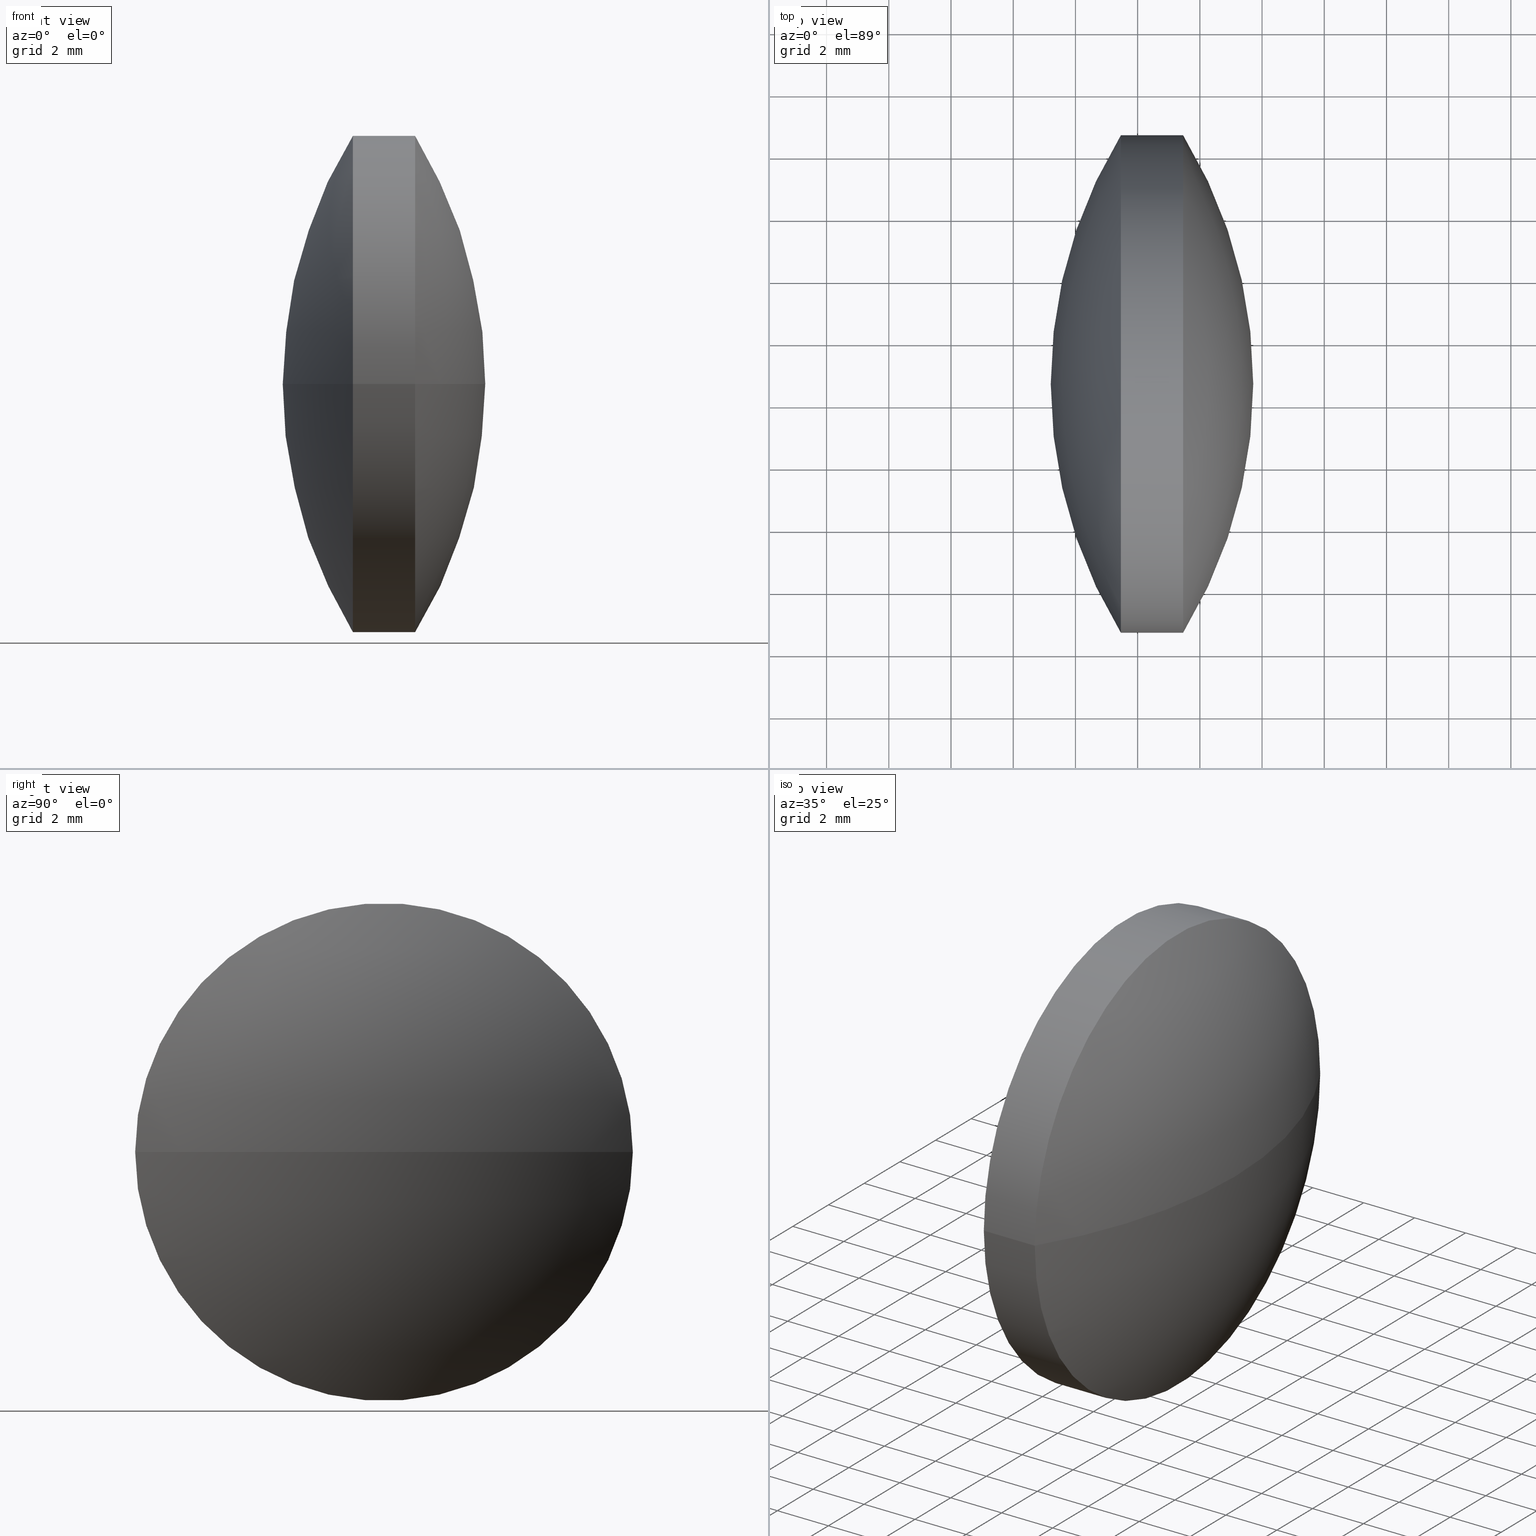
[diagram: canonical four-view strip — front | top / right | iso, engineering-drawing reading convention]
A machine part, canonical four-view strip (front | top / right | iso — engineering-drawing reading convention). The complete STEP part file that produces these views, byte-faithful:
ISO-10303-21;
HEADER;
FILE_DESCRIPTION (( 'STEP AP203' ),
    '1' );
FILE_NAME ('110015.STEP',
    '2019-06-25T05:50:00',
    ( '' ),
    ( '' ),
    'SwSTEP 2.0',
    'SolidWorks 2016',
    '' );
FILE_SCHEMA (( 'CONFIG_CONTROL_DESIGN' ));
ENDSEC;

DATA;
#1 = ORIENTED_EDGE ( 'NONE', *, *, #147, .T. ) ;
#2 = ADVANCED_FACE ( 'NONE', ( #63 ), #196, .T. ) ;
#3 = ORIENTED_EDGE ( 'NONE', *, *, #215, .T. ) ;
#4 = PRODUCT_RELATED_PRODUCT_CATEGORY ( 'detail', '', ( #56 ) ) ;
#5 = APPROVAL_PERSON_ORGANIZATION ( #238, #283, #157 ) ;
#6 = COORDINATED_UNIVERSAL_TIME_OFFSET ( 8, 0, .AHEAD. ) ;
#7 = CARTESIAN_POINT ( 'NONE',  ( 55.46185434624406700, 38.62432316421085700, 9.797174393178758600E-016 ) ) ;
#8 = ORIENTED_EDGE ( 'NONE', *, *, #215, .F. ) ;
#9 = FACE_OUTER_BOUND ( 'NONE', #11, .T. ) ;
#10 = AXIS2_PLACEMENT_3D ( 'NONE', #51, #102, #250 ) ;
#11 = EDGE_LOOP ( 'NONE', ( #3, #207, #22 ) ) ;
#12 = MECHANICAL_CONTEXT ( 'NONE', #180, 'mechanical' ) ;
#13 = APPROVAL_STATUS ( 'not_yet_approved' ) ;
#14 = APPROVAL_DATE_TIME ( #206, #195 ) ;
#15 = APPROVAL_ROLE ( '' ) ;
#16 = VECTOR ( 'NONE', #287, 1000.000000000000000 ) ;
#17 = COORDINATED_UNIVERSAL_TIME_OFFSET ( 8, 0, .AHEAD. ) ;
#18 = DIRECTION ( 'NONE',  ( -3.623864231530019900E-015, 1.000000000000000000, 0.0000000000000000000 ) ) ;
#19 = CALENDAR_DATE ( 2019, 25, 6 ) ;
#20 = CC_DESIGN_PERSON_AND_ORGANIZATION_ASSIGNMENT ( #149, #181, ( #54 ) ) ;
#21 = PRODUCT_DEFINITION_SHAPE ( 'NONE', 'NONE',  #61 ) ;
#22 = ORIENTED_EDGE ( 'NONE', *, *, #282, .F. ) ;
#23 = COORDINATED_UNIVERSAL_TIME_OFFSET ( 8, 0, .AHEAD. ) ;
#24 = PERSON_AND_ORGANIZATION ( #198, #72 ) ;
#25 =( GEOMETRIC_REPRESENTATION_CONTEXT ( 3 ) GLOBAL_UNCERTAINTY_ASSIGNED_CONTEXT ( ( #96 ) ) GLOBAL_UNIT_ASSIGNED_CONTEXT ( ( #301, #261, #114 ) ) REPRESENTATION_CONTEXT ( 'NONE', 'WORKASPACE' ) );
#26 = CALENDAR_DATE ( 2019, 25, 6 ) ;
#27 = VERTEX_POINT ( 'NONE', #39 ) ;
#28 = CALENDAR_DATE ( 2019, 25, 6 ) ;
#29 = DIRECTION ( 'NONE',  ( -1.000000000000000000, -3.453227301823334800E-015, -0.0000000000000000000 ) ) ;
#30 = APPLICATION_CONTEXT ( 'configuration controlled 3d designs of mechanical parts and assemblies' ) ;
#31 = APPROVAL_STATUS ( 'not_yet_approved' ) ;
#32 = APPROVAL_DATE_TIME ( #40, #259 ) ;
#33 = APPROVAL_ROLE ( '' ) ;
#34 = CC_DESIGN_SECURITY_CLASSIFICATION ( #54, ( #171 ) ) ;
#35 = PERSON_AND_ORGANIZATION_ROLE ( 'creator' ) ;
#36 = CALENDAR_DATE ( 2019, 25, 6 ) ;
#37 = DIRECTION ( 'NONE',  ( 0.0000000000000000000, 0.0000000000000000000, -1.000000000000000000 ) ) ;
#38 = CARTESIAN_POINT ( 'NONE',  ( 0.0000000000000000000, 0.0000000000000000000, 0.0000000000000000000 ) ) ;
#39 = CARTESIAN_POINT ( 'NONE',  ( 55.46185434624412400, 22.62432316421092800, 0.0000000000000000000 ) ) ;
#40 = DATE_AND_TIME ( #94, #166 ) ;
#41 = DATE_AND_TIME ( #28, #46 ) ;
#42 = VECTOR ( 'NONE', #244, 1000.000000000000000 ) ;
#43 = CIRCLE ( 'NONE', #161, 7.999999999999972500 ) ;
#44 = CC_DESIGN_PERSON_AND_ORGANIZATION_ASSIGNMENT ( #24, #251, ( #61 ) ) ;
#45 = DIRECTION ( 'NONE',  ( 3.469446951953622900E-015, -1.000000000000000000, 0.0000000000000000000 ) ) ;
#46 = LOCAL_TIME ( 13, 50, 0.0000000000000000000, #243 ) ;
#47 = CARTESIAN_POINT ( 'NONE',  ( 53.46185434624409500, 30.62432316421086800, 0.0000000000000000000 ) ) ;
#48 = CYLINDRICAL_SURFACE ( 'NONE', #10, 7.999999999999976000 ) ;
#49 = CC_DESIGN_PERSON_AND_ORGANIZATION_ASSIGNMENT ( #303, #86, ( #172 ) ) ;
#50 = DIRECTION ( 'NONE',  ( -4.228983761906197800E-031, 1.224646799147353200E-016, -1.000000000000000000 ) ) ;
#51 = CARTESIAN_POINT ( 'NONE',  ( 49.57645588697565100, 30.62432316421085700, 0.0000000000000000000 ) ) ;
#52 = CIRCLE ( 'NONE', #91, 7.999999999999979600 ) ;
#53 = DIRECTION ( 'NONE',  ( -0.0000000000000000000, 0.0000000000000000000, 1.000000000000000000 ) ) ;
#54 = SECURITY_CLASSIFICATION ( '', '', #132 ) ;
#55 = APPROVAL_STATUS ( 'not_yet_approved' ) ;
#56 = PRODUCT ( '110015', '110015', '', ( #12 ) ) ;
#57 = DATE_AND_TIME ( #150, #120 ) ;
#58 = PERSON_AND_ORGANIZATION ( #198, #72 ) ;
#59 = AXIS2_PLACEMENT_3D ( 'NONE', #304, #29, #129 ) ;
#60 = ORIENTED_EDGE ( 'NONE', *, *, #147, .F. ) ;
#61 = PRODUCT_DEFINITION ( 'δ֪', '', #171, #286 ) ;
#62 = SPHERICAL_SURFACE ( 'NONE', #223, 15.31822046429724300 ) ;
#63 = FACE_OUTER_BOUND ( 'NONE', #67, .T. ) ;
#64 = MECHANICAL_CONTEXT ( 'NONE', #65, 'mechanical' ) ;
#65 = APPLICATION_CONTEXT ( 'configuration controlled 3d designs of mechanical parts and assemblies' ) ;
#66 = PERSON_AND_ORGANIZATION ( #198, #72 ) ;
#67 = EDGE_LOOP ( 'NONE', ( #90, #68, #145 ) ) ;
#68 = ORIENTED_EDGE ( 'NONE', *, *, #88, .T. ) ;
#69 = CC_DESIGN_APPROVAL ( #195, ( #92 ) ) ;
#70 = COORDINATED_UNIVERSAL_TIME_OFFSET ( 8, 0, .AHEAD. ) ;
#71 = AXIS2_PLACEMENT_3D ( 'NONE', #165, #211, #18 ) ;
#72 = ORGANIZATION ( 'δָ��', 'δָ��', '' ) ;
#73 = DIRECTION ( 'NONE',  ( -1.000000000000000000, -3.453227301823334800E-015, -0.0000000000000000000 ) ) ;
#74 = SECURITY_CLASSIFICATION ( '', '', #233 ) ;
#75 = LOCAL_TIME ( 13, 50, 0.0000000000000000000, #299 ) ;
#76 = DIRECTION ( 'NONE',  ( 0.0000000000000000000, 1.000000000000000000, 1.224646799147353200E-016 ) ) ;
#77 = CARTESIAN_POINT ( 'NONE',  ( 53.46185434624406700, 38.62432316421085700, 0.0000000000000000000 ) ) ;
#78 = DIRECTION ( 'NONE',  ( 1.000000000000000000, 0.0000000000000000000, 0.0000000000000000000 ) ) ;
#79 = APPLICATION_PROTOCOL_DEFINITION ( 'international standard', 'config_control_design', 1994, #180 ) ;
#80 = PERSON_AND_ORGANIZATION_ROLE ( 'design_supplier' ) ;
#81 = LOCAL_TIME ( 13, 50, 0.0000000000000000000, #144 ) ;
#82 = PERSON_AND_ORGANIZATION_ROLE ( 'classification_officer' ) ;
#83 = APPROVAL ( #155, 'δָ��' ) ;
#84 = ORIENTED_EDGE ( 'NONE', *, *, #123, .F. ) ;
#85 = CALENDAR_DATE ( 2019, 25, 6 ) ;
#86 = PERSON_AND_ORGANIZATION_ROLE ( 'design_owner' ) ;
#87 = DIRECTION ( 'NONE',  ( 3.623864231530011200E-015, -1.000000000000000000, 0.0000000000000000000 ) ) ;
#88 = EDGE_CURVE ( 'NONE', #128, #214, #52, .T. ) ;
#89 = LOCAL_TIME ( 13, 50, 0.0000000000000000000, #219 ) ;
#90 = ORIENTED_EDGE ( 'NONE', *, *, #115, .F. ) ;
#91 = AXIS2_PLACEMENT_3D ( 'NONE', #173, #73, #122 ) ;
#92 = PRODUCT_DEFINITION ( 'δ֪', '', #117, #253 ) ;
#93 = DATE_AND_TIME ( #85, #224 ) ;
#94 = CALENDAR_DATE ( 2019, 25, 6 ) ;
#95 = VERTEX_POINT ( 'NONE', #7 ) ;
#96 = UNCERTAINTY_MEASURE_WITH_UNIT (LENGTH_MEASURE( 1.000000000000000100E-005 ), #301, 'distance_accuracy_value', 'NONE');
#97 = PERSON_AND_ORGANIZATION ( #198, #72 ) ;
#98 = FACE_OUTER_BOUND ( 'NONE', #186, .T. ) ;
#99 = AXIS2_PLACEMENT_3D ( 'NONE', #142, #235, #164 ) ;
#100 = CARTESIAN_POINT ( 'NONE',  ( 51.20686006052977000, 30.62432316421083600, 0.0000000000000000000 ) ) ;
#101 = CARTESIAN_POINT ( 'NONE',  ( 49.57645588697565100, 30.62432316421085700, 0.0000000000000000000 ) ) ;
#102 = DIRECTION ( 'NONE',  ( -1.000000000000000000, -3.453227301823334800E-015, -0.0000000000000000000 ) ) ;
#103 = DIRECTION ( 'NONE',  ( 4.228983761906197800E-031, -1.224646799147353200E-016, 1.000000000000000000 ) ) ;
#104 = APPLICATION_PROTOCOL_DEFINITION ( 'international standard', 'config_control_design', 1994, #30 ) ;
#105 = PERSON_AND_ORGANIZATION ( #198, #72 ) ;
#106 = CC_DESIGN_APPROVAL ( #252, ( #54 ) ) ;
#107 = CLOSED_SHELL ( 'NONE', ( #281, #264, #305, #2, #191, #216 ) ) ;
#108 = DATE_TIME_ROLE ( 'creation_date' ) ;
#109 = EDGE_CURVE ( 'NONE', #285, #27, #242, .T. ) ;
#110 = APPROVAL_PERSON_ORGANIZATION ( #58, #252, #15 ) ;
#111 = CC_DESIGN_DATE_AND_TIME_ASSIGNMENT ( #231, #130, ( #92 ) ) ;
#112 = DIRECTION ( 'NONE',  ( -0.0000000000000000000, 0.0000000000000000000, 1.000000000000000000 ) ) ;
#113 = PERSON_AND_ORGANIZATION ( #198, #72 ) ;
#114 =( NAMED_UNIT ( * ) SI_UNIT ( $, .STERADIAN. ) SOLID_ANGLE_UNIT ( ) );
#115 = EDGE_CURVE ( 'NONE', #128, #151, #260, .T. ) ;
#116 = PERSON_AND_ORGANIZATION ( #198, #72 ) ;
#117 = PRODUCT_DEFINITION_FORMATION_WITH_SPECIFIED_SOURCE ( '�κ�', '', #172, .NOT_KNOWN. ) ;
#118 = ORIENTED_EDGE ( 'NONE', *, *, #182, .F. ) ;
#119 = CARTESIAN_POINT ( 'NONE',  ( 49.57645588697562300, 38.62432316421082800, 9.797174393178796100E-016 ) ) ;
#120 = LOCAL_TIME ( 13, 50, 0.0000000000000000000, #189 ) ;
#121 = SHAPE_DEFINITION_REPRESENTATION ( #21, #221 ) ;
#122 = DIRECTION ( 'NONE',  ( 3.469446951953622900E-015, -1.000000000000000000, 0.0000000000000000000 ) ) ;
#123 = EDGE_CURVE ( 'NONE', #27, #95, #43, .T. ) ;
#124 = ORIENTED_EDGE ( 'NONE', *, *, #200, .T. ) ;
#125 = CARTESIAN_POINT ( 'NONE',  ( 49.57645588697568000, 22.62432316421087800, 0.0000000000000000000 ) ) ;
#126 = CC_DESIGN_PERSON_AND_ORGANIZATION_ASSIGNMENT ( #197, #131, ( #117 ) ) ;
#127 = SPHERICAL_SURFACE ( 'NONE', #302, 15.31822046429724300 ) ;
#128 = VERTEX_POINT ( 'NONE', #138 ) ;
#129 = DIRECTION ( 'NONE',  ( 3.469446951953626000E-015, -1.000000000000000000, 0.0000000000000000000 ) ) ;
#130 = DATE_TIME_ROLE ( 'creation_date' ) ;
#131 = PERSON_AND_ORGANIZATION_ROLE ( 'creator' ) ;
#132 = SECURITY_CLASSIFICATION_LEVEL ( 'unclassified' ) ;
#133 = APPROVAL_PERSON_ORGANIZATION ( #113, #195, #228 ) ;
#134 = CC_DESIGN_APPROVAL ( #83, ( #171 ) ) ;
#135 = ORIENTED_EDGE ( 'NONE', *, *, #200, .F. ) ;
#136 = CIRCLE ( 'NONE', #59, 7.999999999999972500 ) ;
#137 = CARTESIAN_POINT ( 'NONE',  ( 42.39862816766111600, 30.62432316421085700, 0.0000000000000000000 ) ) ;
#138 = CARTESIAN_POINT ( 'NONE',  ( 53.46185434624411700, 22.62432316421085000, -9.797174393178811900E-016 ) ) ;
#139 = ORIENTED_EDGE ( 'NONE', *, *, #109, .T. ) ;
#140 = DIRECTION ( 'NONE',  ( -1.000000000000000000, 0.0000000000000000000, 0.0000000000000000000 ) ) ;
#141 = AXIS2_PLACEMENT_3D ( 'NONE', #38, #278, #212 ) ;
#142 = CARTESIAN_POINT ( 'NONE',  ( 0.0000000000000000000, 0.0000000000000000000, 0.0000000000000000000 ) ) ;
#143 = APPLICATION_PROTOCOL_DEFINITION ( 'international standard', 'config_control_design', 1994, #65 ) ;
#144 = COORDINATED_UNIVERSAL_TIME_OFFSET ( 8, 0, .AHEAD. ) ;
#145 = ORIENTED_EDGE ( 'NONE', *, *, #282, .T. ) ;
#146 = FACE_OUTER_BOUND ( 'NONE', #232, .T. ) ;
#147 = EDGE_CURVE ( 'NONE', #27, #128, #158, .T. ) ;
#148 = PRODUCT_RELATED_PRODUCT_CATEGORY ( 'detail', '', ( #172 ) ) ;
#149 = PERSON_AND_ORGANIZATION ( #198, #72 ) ;
#150 = CALENDAR_DATE ( 2019, 25, 6 ) ;
#151 = VERTEX_POINT ( 'NONE', #100 ) ;
#152 = DATE_AND_TIME ( #163, #217 ) ;
#153 = DIRECTION ( 'NONE',  ( -1.000000000000000000, -3.453227301823334800E-015, -0.0000000000000000000 ) ) ;
#154 = CC_DESIGN_PERSON_AND_ORGANIZATION_ASSIGNMENT ( #262, #230, ( #117 ) ) ;
#155 = APPROVAL_STATUS ( 'not_yet_approved' ) ;
#156 = COORDINATED_UNIVERSAL_TIME_OFFSET ( 8, 0, .AHEAD. ) ;
#157 = APPROVAL_ROLE ( '' ) ;
#158 = LINE ( 'NONE', #125, #42 ) ;
#159 = MANIFOLD_SOLID_BREP ( '��ת1', #107 ) ;
#160 = DATE_TIME_ROLE ( 'classification_date' ) ;
#161 = AXIS2_PLACEMENT_3D ( 'NONE', #290, #153, #202 ) ;
#162 = AXIS2_PLACEMENT_3D ( 'NONE', #101, #292, #247 ) ;
#163 = CALENDAR_DATE ( 2019, 25, 6 ) ;
#164 = DIRECTION ( 'NONE',  ( 1.000000000000000000, 0.0000000000000000000, 0.0000000000000000000 ) ) ;
#165 = CARTESIAN_POINT ( 'NONE',  ( 66.52508052482697600, 30.62432316421088500, 0.0000000000000000000 ) ) ;
#166 = LOCAL_TIME ( 13, 50, 0.0000000000000000000, #70 ) ;
#167 = ORIENTED_EDGE ( 'NONE', *, *, #193, .T. ) ;
#168 = APPROVAL_PERSON_ORGANIZATION ( #116, #83, #274 ) ;
#169 = AXIS2_PLACEMENT_3D ( 'NONE', #227, #53, #78 ) ;
#170 = PERSON_AND_ORGANIZATION ( #198, #72 ) ;
#171 = PRODUCT_DEFINITION_FORMATION_WITH_SPECIFIED_SOURCE ( '�κ�', '', #56, .NOT_KNOWN. ) ;
#172 = PRODUCT ( '110015', '110015', '', ( #64 ) ) ;
#173 = CARTESIAN_POINT ( 'NONE',  ( 53.46185434624409500, 30.62432316421086800, 0.0000000000000000000 ) ) ;
#174 = APPROVAL_DATE_TIME ( #240, #83 ) ;
#175 = AXIS2_PLACEMENT_3D ( 'NONE', #246, #103, #291 ) ;
#176 = CC_DESIGN_PERSON_AND_ORGANIZATION_ASSIGNMENT ( #279, #35, ( #92 ) ) ;
#177 = LINE ( 'NONE', #119, #16 ) ;
#178 = APPROVAL_STATUS ( 'not_yet_approved' ) ;
#179 = CARTESIAN_POINT ( 'NONE',  ( 57.71684863195836400, 30.62432316421091000, 0.0000000000000000000 ) ) ;
#180 = APPLICATION_CONTEXT ( 'configuration controlled 3d designs of mechanical parts and assemblies' ) ;
#181 = PERSON_AND_ORGANIZATION_ROLE ( 'classification_officer' ) ;
#182 = EDGE_CURVE ( 'NONE', #285, #95, #245, .T. ) ;
#183 = APPROVAL_DATE_TIME ( #152, #209 ) ;
#184 = ORIENTED_EDGE ( 'NONE', *, *, #123, .T. ) ;
#185 = FACE_OUTER_BOUND ( 'NONE', #199, .T. ) ;
#186 = EDGE_LOOP ( 'NONE', ( #184, #167, #266, #60 ) ) ;
#187 = CC_DESIGN_APPROVAL ( #283, ( #74 ) ) ;
#188 = CC_DESIGN_PERSON_AND_ORGANIZATION_ASSIGNMENT ( #97, #272, ( #171 ) ) ;
#189 = COORDINATED_UNIVERSAL_TIME_OFFSET ( 8, 0, .AHEAD. ) ;
#190 = CALENDAR_DATE ( 2019, 25, 6 ) ;
#191 = ADVANCED_FACE ( 'NONE', ( #300 ), #62, .T. ) ;
#192 = ORIENTED_EDGE ( 'NONE', *, *, #109, .F. ) ;
#193 = EDGE_CURVE ( 'NONE', #95, #214, #177, .T. ) ;
#194 = SPHERICAL_SURFACE ( 'NONE', #237, 15.31822046429720900 ) ;
#195 = APPROVAL ( #178, 'δָ��' ) ;
#196 = SPHERICAL_SURFACE ( 'NONE', #71, 15.31822046429720900 ) ;
#197 = PERSON_AND_ORGANIZATION ( #198, #72 ) ;
#198 = PERSON ( 'δָ��', 'δָ��', 'δָ��', ('δָ��'), ('δָ��'), ('δָ��') ) ;
#199 = EDGE_LOOP ( 'NONE', ( #249, #124, #1, #8 ) ) ;
#200 = EDGE_CURVE ( 'NONE', #95, #27, #136, .T. ) ;
#201 = CYLINDRICAL_SURFACE ( 'NONE', #162, 7.999999999999976000 ) ;
#202 = DIRECTION ( 'NONE',  ( 3.469446951953626000E-015, -1.000000000000000000, 0.0000000000000000000 ) ) ;
#203 = CC_DESIGN_SECURITY_CLASSIFICATION ( #74, ( #117 ) ) ;
#204 = DIRECTION ( 'NONE',  ( -0.0000000000000000000, 0.0000000000000000000, -1.000000000000000000 ) ) ;
#205 = PERSON_AND_ORGANIZATION_ROLE ( 'design_owner' ) ;
#206 = DATE_AND_TIME ( #273, #213 ) ;
#207 = ORIENTED_EDGE ( 'NONE', *, *, #115, .T. ) ;
#208 = AXIS2_PLACEMENT_3D ( 'NONE', #234, #50, #76 ) ;
#209 = APPROVAL ( #55, 'δָ��' ) ;
#210 = LOCAL_TIME ( 13, 50, 0.0000000000000000000, #6 ) ;
#211 = DIRECTION ( 'NONE',  ( -0.0000000000000000000, 0.0000000000000000000, -1.000000000000000000 ) ) ;
#212 = DIRECTION ( 'NONE',  ( 1.000000000000000000, 0.0000000000000000000, 0.0000000000000000000 ) ) ;
#213 = LOCAL_TIME ( 13, 50, 0.0000000000000000000, #156 ) ;
#214 = VERTEX_POINT ( 'NONE', #77 ) ;
#215 = EDGE_CURVE ( 'NONE', #214, #128, #226, .T. ) ;
#216 = ADVANCED_FACE ( 'NONE', ( #185 ), #201, .T. ) ;
#217 = LOCAL_TIME ( 13, 50, 0.0000000000000000000, #23 ) ;
#218 = CC_DESIGN_PERSON_AND_ORGANIZATION_ASSIGNMENT ( #294, #205, ( #56 ) ) ;
#219 = COORDINATED_UNIVERSAL_TIME_OFFSET ( 8, 0, .AHEAD. ) ;
#220 = CC_DESIGN_APPROVAL ( #209, ( #61 ) ) ;
#221 = ADVANCED_BREP_SHAPE_REPRESENTATION ( '110015', ( #159, #99 ), #25 ) ;
#222 = DIRECTION ( 'NONE',  ( -1.000000000000000000, -3.453227301823334800E-015, -0.0000000000000000000 ) ) ;
#223 = AXIS2_PLACEMENT_3D ( 'NONE', #236, #112, #87 ) ;
#224 = LOCAL_TIME ( 13, 50, 0.0000000000000000000, #17 ) ;
#225 = CC_DESIGN_PERSON_AND_ORGANIZATION_ASSIGNMENT ( #66, #82, ( #74 ) ) ;
#226 = CIRCLE ( 'NONE', #258, 7.999999999999979600 ) ;
#227 = CARTESIAN_POINT ( 'NONE',  ( 66.52508052482697600, 30.62432316421088500, 0.0000000000000000000 ) ) ;
#228 = APPROVAL_ROLE ( '' ) ;
#229 = DIRECTION ( 'NONE',  ( -3.623864231530019900E-015, 1.000000000000000000, 0.0000000000000000000 ) ) ;
#230 = PERSON_AND_ORGANIZATION_ROLE ( 'design_supplier' ) ;
#231 = DATE_AND_TIME ( #19, #81 ) ;
#232 = EDGE_LOOP ( 'NONE', ( #192, #275, #84 ) ) ;
#233 = SECURITY_CLASSIFICATION_LEVEL ( 'unclassified' ) ;
#234 = CARTESIAN_POINT ( 'NONE',  ( 66.52508052482697600, 30.62432316421088500, 0.0000000000000000000 ) ) ;
#235 = DIRECTION ( 'NONE',  ( 0.0000000000000000000, 0.0000000000000000000, 1.000000000000000000 ) ) ;
#236 = CARTESIAN_POINT ( 'NONE',  ( 42.39862816766111600, 30.62432316421085700, 0.0000000000000000000 ) ) ;
#237 = AXIS2_PLACEMENT_3D ( 'NONE', #293, #204, #229 ) ;
#238 = PERSON_AND_ORGANIZATION ( #198, #72 ) ;
#239 = CC_DESIGN_DATE_AND_TIME_ASSIGNMENT ( #93, #108, ( #61 ) ) ;
#240 = DATE_AND_TIME ( #190, #75 ) ;
#241 = CC_DESIGN_APPROVAL ( #259, ( #117 ) ) ;
#242 = CIRCLE ( 'NONE', #267, 15.31822046429724300 ) ;
#243 = COORDINATED_UNIVERSAL_TIME_OFFSET ( 8, 0, .AHEAD. ) ;
#244 = DIRECTION ( 'NONE',  ( -1.000000000000000000, -3.453227301823334800E-015, -0.0000000000000000000 ) ) ;
#245 = CIRCLE ( 'NONE', #175, 15.31822046429724300 ) ;
#246 = CARTESIAN_POINT ( 'NONE',  ( 42.39862816766111600, 30.62432316421085700, 0.0000000000000000000 ) ) ;
#247 = DIRECTION ( 'NONE',  ( 3.469446951953624400E-015, -1.000000000000000000, 0.0000000000000000000 ) ) ;
#248 = DIRECTION ( 'NONE',  ( 3.623864231530011200E-015, -1.000000000000000000, 0.0000000000000000000 ) ) ;
#249 = ORIENTED_EDGE ( 'NONE', *, *, #193, .F. ) ;
#250 = DIRECTION ( 'NONE',  ( 3.469446951953624400E-015, -1.000000000000000000, 0.0000000000000000000 ) ) ;
#251 = PERSON_AND_ORGANIZATION_ROLE ( 'creator' ) ;
#252 = APPROVAL ( #31, 'δָ��' ) ;
#253 = DESIGN_CONTEXT ( 'detailed design', #30, 'design' ) ;
#254 = APPLICATION_CONTEXT ( 'configuration controlled 3d designs of mechanical parts and assemblies' ) ;
#255 = DATE_AND_TIME ( #26, #89 ) ;
#256 = DATE_AND_TIME ( #36, #210 ) ;
#257 = CIRCLE ( 'NONE', #169, 15.31822046429720500 ) ;
#258 = AXIS2_PLACEMENT_3D ( 'NONE', #47, #222, #45 ) ;
#259 = APPROVAL ( #13, 'δָ��' ) ;
#260 = CIRCLE ( 'NONE', #208, 15.31822046429720900 ) ;
#261 =( NAMED_UNIT ( * ) PLANE_ANGLE_UNIT ( ) SI_UNIT ( $, .RADIAN. ) );
#262 = PERSON_AND_ORGANIZATION ( #198, #72 ) ;
#263 = EDGE_LOOP ( 'NONE', ( #118, #139, #135 ) ) ;
#264 = ADVANCED_FACE ( 'NONE', ( #146 ), #127, .T. ) ;
#265 = APPROVAL_PERSON_ORGANIZATION ( #105, #259, #33 ) ;
#266 = ORIENTED_EDGE ( 'NONE', *, *, #88, .F. ) ;
#267 = AXIS2_PLACEMENT_3D ( 'NONE', #277, #37, #140 ) ;
#268 = CC_DESIGN_DATE_AND_TIME_ASSIGNMENT ( #255, #271, ( #74 ) ) ;
#269 = PERSON_AND_ORGANIZATION ( #198, #72 ) ;
#270 = DIRECTION ( 'NONE',  ( -0.0000000000000000000, 0.0000000000000000000, 1.000000000000000000 ) ) ;
#271 = DATE_TIME_ROLE ( 'classification_date' ) ;
#272 = PERSON_AND_ORGANIZATION_ROLE ( 'creator' ) ;
#273 = CALENDAR_DATE ( 2019, 25, 6 ) ;
#274 = APPROVAL_ROLE ( '' ) ;
#275 = ORIENTED_EDGE ( 'NONE', *, *, #182, .T. ) ;
#276 = PRODUCT_DEFINITION_SHAPE ( 'NONE', 'NONE',  #92 ) ;
#277 = CARTESIAN_POINT ( 'NONE',  ( 42.39862816766111600, 30.62432316421085700, 0.0000000000000000000 ) ) ;
#278 = DIRECTION ( 'NONE',  ( 0.0000000000000000000, 0.0000000000000000000, 1.000000000000000000 ) ) ;
#279 = PERSON_AND_ORGANIZATION ( #198, #72 ) ;
#280 = CC_DESIGN_PERSON_AND_ORGANIZATION_ASSIGNMENT ( #269, #80, ( #171 ) ) ;
#281 = ADVANCED_FACE ( 'NONE', ( #98 ), #48, .T. ) ;
#282 = EDGE_CURVE ( 'NONE', #214, #151, #257, .T. ) ;
#283 = APPROVAL ( #296, 'δָ��' ) ;
#284 = APPROVAL_DATE_TIME ( #57, #283 ) ;
#285 = VERTEX_POINT ( 'NONE', #179 ) ;
#286 = DESIGN_CONTEXT ( 'detailed design', #254, 'design' ) ;
#287 = DIRECTION ( 'NONE',  ( -1.000000000000000000, -3.453227301823334800E-015, -0.0000000000000000000 ) ) ;
#288 = APPROVAL_DATE_TIME ( #256, #252 ) ;
#289 = APPROVAL_PERSON_ORGANIZATION ( #170, #209, #295 ) ;
#290 = CARTESIAN_POINT ( 'NONE',  ( 55.46185434624409500, 30.62432316421087500, 0.0000000000000000000 ) ) ;
#291 = DIRECTION ( 'NONE',  ( 0.0000000000000000000, -1.000000000000000000, -1.224646799147353200E-016 ) ) ;
#292 = DIRECTION ( 'NONE',  ( -1.000000000000000000, -3.453227301823334800E-015, -0.0000000000000000000 ) ) ;
#293 = CARTESIAN_POINT ( 'NONE',  ( 66.52508052482697600, 30.62432316421088500, 0.0000000000000000000 ) ) ;
#294 = PERSON_AND_ORGANIZATION ( #198, #72 ) ;
#295 = APPROVAL_ROLE ( '' ) ;
#296 = APPROVAL_STATUS ( 'not_yet_approved' ) ;
#297 = CC_DESIGN_DATE_AND_TIME_ASSIGNMENT ( #41, #160, ( #54 ) ) ;
#298 = APPLICATION_PROTOCOL_DEFINITION ( 'international standard', 'config_control_design', 1994, #254 ) ;
#299 = COORDINATED_UNIVERSAL_TIME_OFFSET ( 8, 0, .AHEAD. ) ;
#300 = FACE_OUTER_BOUND ( 'NONE', #263, .T. ) ;
#301 =( LENGTH_UNIT ( ) NAMED_UNIT ( * ) SI_UNIT ( .MILLI., .METRE. ) );
#302 = AXIS2_PLACEMENT_3D ( 'NONE', #137, #270, #248 ) ;
#303 = PERSON_AND_ORGANIZATION ( #198, #72 ) ;
#304 = CARTESIAN_POINT ( 'NONE',  ( 55.46185434624409500, 30.62432316421087500, 0.0000000000000000000 ) ) ;
#305 = ADVANCED_FACE ( 'NONE', ( #9 ), #194, .T. ) ;
ENDSEC;
END-ISO-10303-21;
